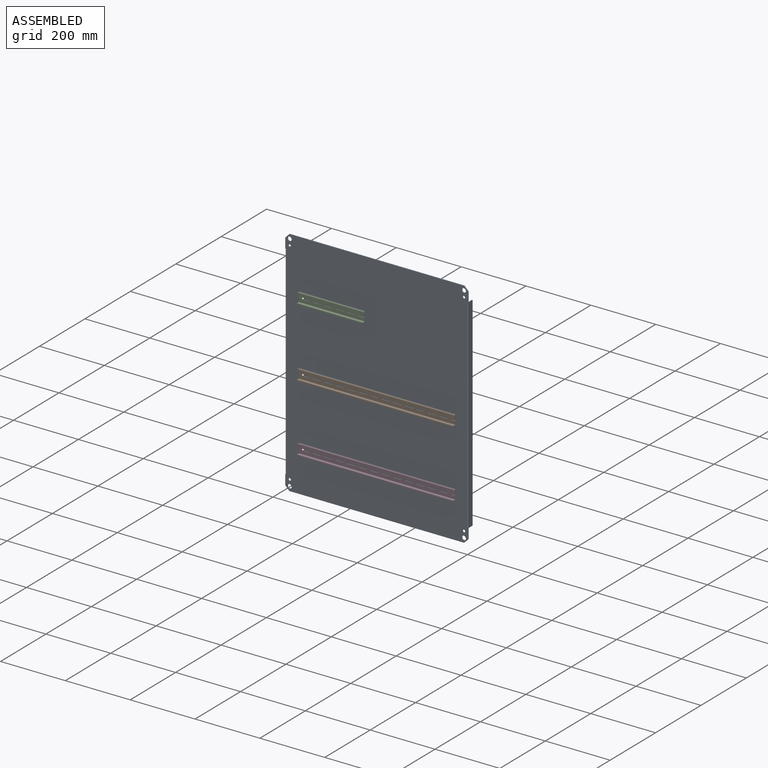
[diagram: assembled view]
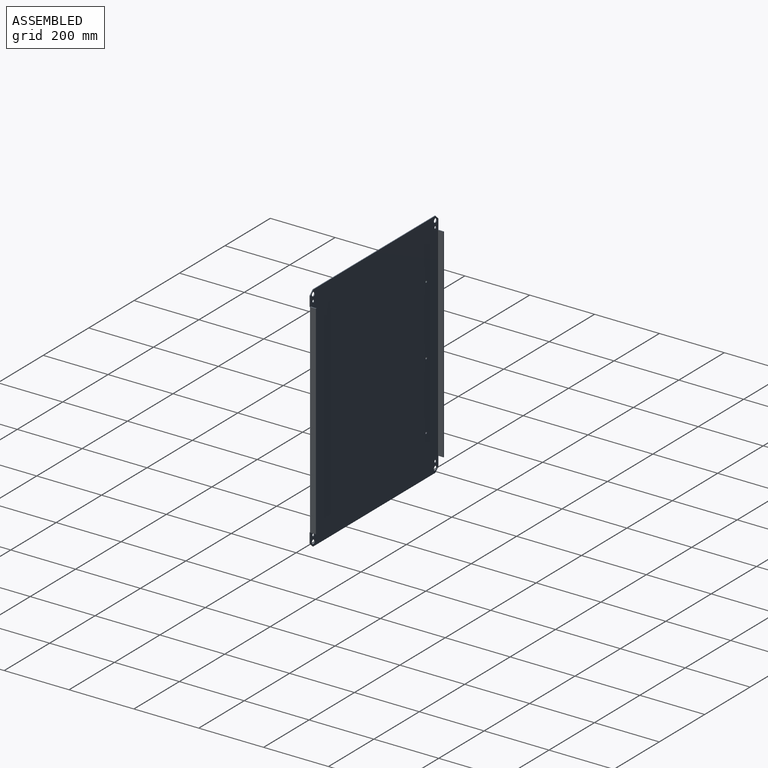
[diagram: assembled view, second angle]
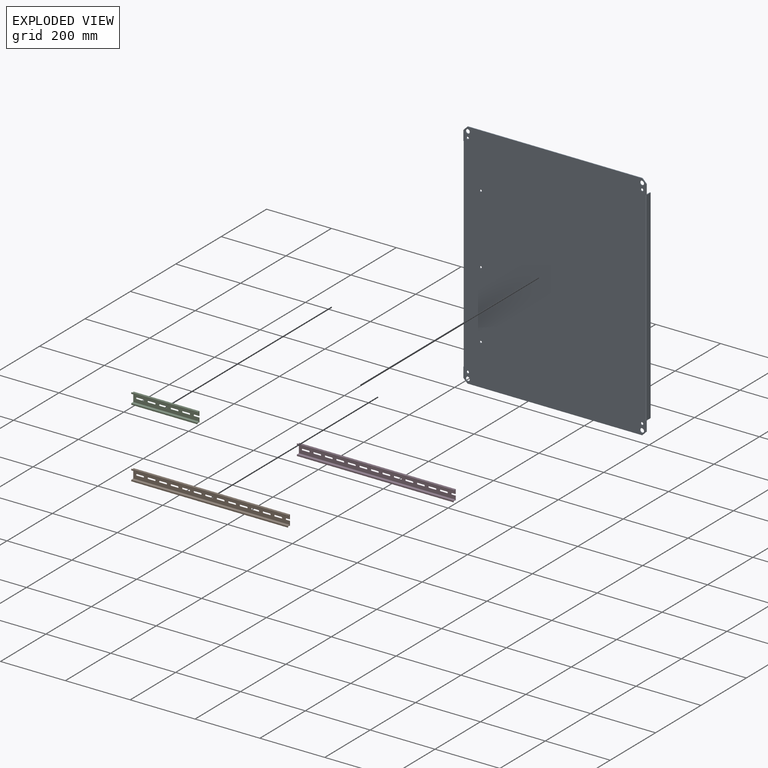
[diagram: exploded view]
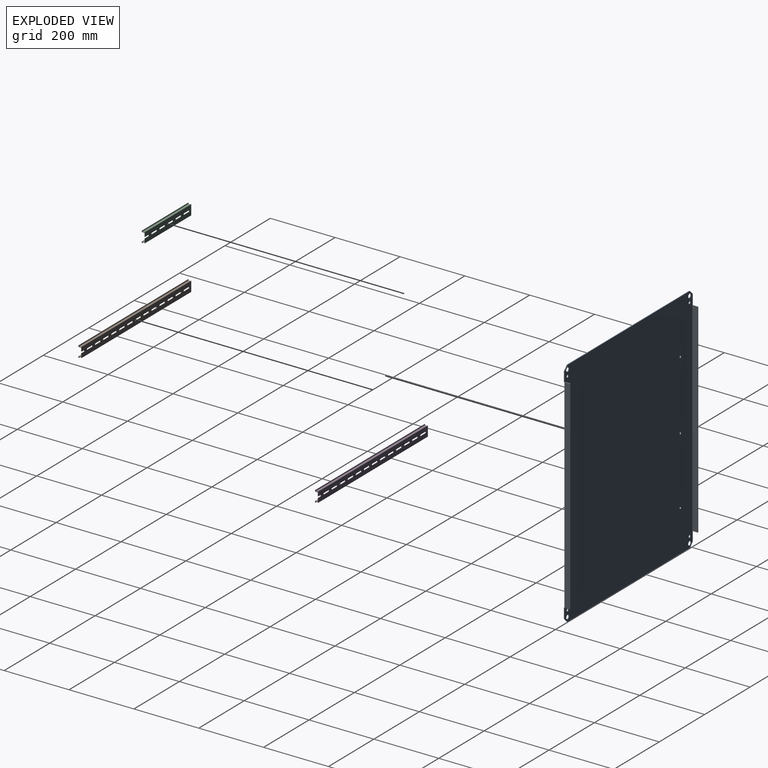
[diagram: exploded view, second angle]
ASSEMBLY  parts=4 mates=3
PART A: 45 faces, bbox 563.9x19.7x716.3 mm
  f0: plane 629.01x16.88mm, normal (1,0,0), area 10618.9mm2, adj f1,f2,f4,f6
  f1: plane 19.66x2.78mm, normal (0,0,-1), area 46.1mm2, adj f0,f2,f3,f5,f6,f9,f11,f12
  f2: plane 629.01x2.38mm, normal (0,1,0), area 1497.8mm2, adj f0,f1,f3,f4
  f3: plane 629.01x16.88mm, normal (-1,0,0), area 10618.9mm2, adj f1,f2,f4,f5
  f4: plane 19.66x2.78mm, normal (0,0,1), area 46.1mm2, adj f0,f2,f3,f5,f6,f8,f11,f12
  f5: cylinder r=0.4mm len=629.01mm, axis (0,0,1), area 391.5mm2, adj f1,f3,f4,f11
  f6: cylinder r=2.78mm len=629.01mm, axis (0,0,1), area 2744.3mm2, adj f0,f1,f4,f12
  f7: plane 2.78x2.38mm, normal (0,0,-1), area 6.6mm2, adj f8,f11,f12,f13
  f8: plane 2.38x0.01mm, normal (1,0,0), area 0mm2, adj f4,f7,f11,f12
  f9: plane 2.38x0.01mm, normal (1,0,0), area 0mm2, adj f1,f10,f11,f12
  f10: plane 2.78x2.38mm, normal (0,0,1), area 6.6mm2, adj f9,f11,f12,f39
  f11: plane 716.28x563.88mm, normal (0,1,0), area 399279.6mm2, adj f1,f4,f5,f7,f8,f9,f10,f13
  f12: plane 716.28x563.88mm, normal (0,-1,0), area 399279.6mm2, adj f1,f4,f6,f7,f8,f9,f10,f13
  f13: plane 30.93x2.38mm, normal (1,0,0), area 73.7mm2, adj f7,f11,f12,f40
  f14: plane 629.01x16.88mm, normal (-1,0,0), area 10618.9mm2, adj f15,f16,f18,f20
  f15: plane 19.66x2.78mm, normal (0,0,1), area 46.1mm2, adj f11,f12,f14,f16,f17,f19,f20,f23
  f16: plane 629.01x2.38mm, normal (0,1,0), area 1497.8mm2, adj f14,f15,f17,f18
  f17: plane 629.01x16.88mm, normal (1,0,0), area 10618.9mm2, adj f15,f16,f18,f19
  f18: plane 19.66x2.78mm, normal (0,0,-1), area 46.1mm2, adj f11,f12,f14,f16,f17,f19,f20,f22
  f19: cylinder r=0.4mm len=629.01mm, axis (0,0,-1), area 391.5mm2, adj f11,f15,f17,f18
  f20: cylinder r=2.78mm len=629.01mm, axis (0,0,-1), area 2744.3mm2, adj f12,f14,f15,f18
  f21: plane 2.78x2.38mm, normal (0,0,1), area 6.6mm2, adj f11,f12,f22,f25
  f22: plane 2.38x0.01mm, normal (-1,0,0), area 0mm2, adj f11,f12,f18,f21
  f23: plane 2.38x0.01mm, normal (-1,0,0), area 0mm2, adj f11,f12,f15,f24
  f24: plane 2.78x2.38mm, normal (0,0,-1), area 6.6mm2, adj f11,f12,f23,f26
  f25: plane 30.93x2.38mm, normal (-1,0,0), area 73.7mm2, adj f11,f12,f21,f36
  f26: plane 30.93x2.38mm, normal (-1,0,0), area 73.7mm2, adj f11,f12,f24,f35
  f27: cylinder r=6.35mm len=12.7mm, axis (0,1,0), area 95mm2, adj f11,f12
  f28: cylinder r=6.35mm len=12.7mm, axis (0,1,0), area 95mm2, adj f11,f12
  f29: cylinder r=6.35mm len=12.7mm, axis (0,1,0), area 95mm2, adj f11,f12
  f30: cylinder r=6.35mm len=12.7mm, axis (0,1,0), area 95mm2, adj f11,f12
  f31: cylinder r=3.97mm len=7.94mm, axis (0,1,0), area 59.4mm2, adj f11,f12
  f32: cylinder r=3.97mm len=7.94mm, axis (0,1,0), area 59.4mm2, adj f11,f12
  f33: cylinder r=3.97mm len=7.94mm, axis (0,1,0), area 59.4mm2, adj f11,f12
  f34: cylinder r=3.97mm len=7.94mm, axis (0,1,0), area 59.4mm2, adj f11,f12
  f35: plane 12.7x12.7mm, normal (-0.71,0,0.71), area 42.8mm2, adj f11,f12,f26,f41
  f36: plane 12.7x12.7mm, normal (-0.71,0,-0.71), area 42.8mm2, adj f11,f12,f25,f37
  f37: plane 538.48x2.38mm, normal (0,0,-1), area 1282.3mm2, adj f11,f12,f36,f38
  f38: plane 12.7x12.7mm, normal (0.71,0,-0.71), area 42.8mm2, adj f11,f12,f37,f39
  f39: plane 30.93x2.38mm, normal (1,0,0), area 73.7mm2, adj f10,f11,f12,f38
  f40: plane 12.7x12.7mm, normal (0.71,0,0.71), area 42.8mm2, adj f11,f12,f13,f41
  f41: plane 538.48x2.38mm, normal (0,0,1), area 1282.3mm2, adj f11,f12,f35,f40
  f42: cylinder r=3.17mm len=6.35mm, axis (0,-1,0), area 47.5mm2, adj f11,f12
  f43: cylinder r=3.17mm len=6.35mm, axis (0,-1,0), area 47.5mm2, adj f11,f12
  f44: cylinder r=3.17mm len=6.35mm, axis (0,-1,0), area 47.5mm2, adj f11,f12
PART B: 90 faces, bbox 482.6x10x35 mm
  f0: plane 482.6x3.96mm, normal (0,-1,0), area 1913mm2, adj f25,f26,f34,f89
  f1: plane 482.6x0.96mm, normal (0,0,-1), area 465.2mm2, adj f26,f27,f34,f89
  f2: plane 482.6x0.96mm, normal (0,0,-1), area 465.2mm2, adj f28,f29,f34,f89
  f3: plane 482.6x0.96mm, normal (0,0,1), area 465.2mm2, adj f30,f31,f34,f88
  f4: plane 482.6x0.96mm, normal (0,0,1), area 465.2mm2, adj f32,f33,f34,f88
  f5: plane 482.6x3.96mm, normal (0,-1,0), area 1913mm2, adj f24,f33,f34,f88
  f6: plane 482.6x7.96mm, normal (0,0,-1), area 3843.4mm2, adj f7,f24,f34,f88
  f7: cylinder r=0.27mm len=482.6mm, axis (-1,0,0), area 203.2mm2, adj f6,f8,f34,f88
  f8: plane 482.6x25.46mm, normal (0,-1,0), area 10765mm2, adj f7,f9,f22,f23,f34,f35,f36,f37
  f9: cylinder r=0.27mm len=482.6mm, axis (-1,0,0), area 203.2mm2, adj f8,f10,f34,f89
  f10: plane 482.6x7.96mm, normal (0,0,1), area 3843.4mm2, adj f9,f25,f34,f89
  f11: plane 482.6x2.46mm, normal (0,1,0), area 1189.1mm2, adj f12,f27,f34,f89
  f12: cylinder r=0.27mm len=482.6mm, axis (-1,0,0), area 203.2mm2, adj f11,f13,f34,f89
  f13: plane 482.6x6.46mm, normal (0,0,-1), area 3119.5mm2, adj f12,f14,f34,f89
  f14: cylinder r=0.27mm len=482.6mm, axis (-1,0,0), area 203.2mm2, adj f13,f15,f34,f89
  f15: plane 482.6x0.56mm, normal (0,-1,0), area 272.1mm2, adj f14,f28,f34,f89
  f16: plane 482.6x30.66mm, normal (0,1,0), area 13274.6mm2, adj f22,f23,f29,f30,f34,f35,f36,f37
  f17: plane 482.6x0.56mm, normal (0,-1,0), area 272.1mm2, adj f18,f31,f34,f88
  f18: cylinder r=0.27mm len=482.6mm, axis (-1,0,0), area 203.2mm2, adj f17,f19,f34,f88
  f19: plane 482.6x6.46mm, normal (0,0,1), area 3119.5mm2, adj f18,f20,f34,f88
  f20: cylinder r=0.27mm len=482.6mm, axis (-1,0,0), area 203.2mm2, adj f19,f21,f34,f88
  f21: plane 482.6x2.46mm, normal (0,1,0), area 1189.1mm2, adj f20,f32,f34,f88
  f22: plane 10.5x1.5mm, normal (0,0,1), area 15.8mm2, adj f8,f16,f87,f89
  f23: plane 10.5x1.5mm, normal (0,0,-1), area 15.8mm2, adj f8,f16,f87,f88
  f24: cylinder r=0.27mm len=482.6mm, axis (-1,0,0), area 203.2mm2, adj f5,f6,f34,f88
  f25: cylinder r=0.27mm len=482.6mm, axis (-1,0,0), area 203.2mm2, adj f0,f10,f34,f89
  f26: cylinder r=0.27mm len=482.6mm, axis (-1,0,0), area 203.2mm2, adj f0,f1,f34,f89
  f27: cylinder r=0.27mm len=482.6mm, axis (-1,0,0), area 203.2mm2, adj f1,f11,f34,f89
  f28: cylinder r=0.27mm len=482.6mm, axis (-1,0,0), area 203.2mm2, adj f2,f15,f34,f89
  f29: cylinder r=0.27mm len=482.6mm, axis (-1,0,0), area 203.2mm2, adj f2,f16,f34,f89
  f30: cylinder r=0.27mm len=482.6mm, axis (-1,0,0), area 203.2mm2, adj f3,f16,f34,f88
  f31: cylinder r=0.27mm len=482.6mm, axis (-1,0,0), area 203.2mm2, adj f3,f17,f34,f88
  f32: cylinder r=0.27mm len=482.6mm, axis (-1,0,0), area 203.2mm2, adj f4,f21,f34,f88
  f33: cylinder r=0.27mm len=482.6mm, axis (-1,0,0), area 203.2mm2, adj f4,f5,f34,f88
  f34: plane 35x10mm, normal (-1,0,0), area 81.2mm2, adj f0,f1,f2,f3,f4,f5,f6,f7
  f35: cylinder r=2.35mm len=4.7mm, axis (0,-1,0), area 11.1mm2, adj f8,f16,f36,f38
  f36: plane 20.3x1.5mm, normal (0,0,-1), area 30.4mm2, adj f8,f16,f35,f37
  f37: cylinder r=2.35mm len=4.7mm, axis (0,-1,0), area 11.1mm2, adj f8,f16,f36,f38
  f38: plane 20.3x1.5mm, normal (0,0,1), area 30.5mm2, adj f8,f16,f35,f37
  f39: cylinder r=2.35mm len=4.7mm, axis (0,-1,0), area 11.1mm2, adj f8,f16,f40,f42
  f40: plane 20.3x1.5mm, normal (0,0,-1), area 30.4mm2, adj f8,f16,f39,f41
  f41: cylinder r=2.35mm len=4.7mm, axis (0,-1,0), area 11.1mm2, adj f8,f16,f40,f42
  f42: plane 20.3x1.5mm, normal (0,0,1), area 30.5mm2, adj f8,f16,f39,f41
  f43: plane 20.3x1.5mm, normal (0,0,1), area 30.5mm2, adj f8,f16,f44,f46
  f44: cylinder r=2.35mm len=4.7mm, axis (0,-1,0), area 11.1mm2, adj f8,f16,f43,f45
  f45: plane 20.3x1.5mm, normal (0,0,-1), area 30.4mm2, adj f8,f16,f44,f46
  f46: cylinder r=2.35mm len=4.7mm, axis (0,-1,0), area 11.1mm2, adj f8,f16,f43,f45
  f47: plane 20.3x1.5mm, normal (0,0,1), area 30.5mm2, adj f8,f16,f48,f50
  f48: cylinder r=2.35mm len=4.7mm, axis (0,-1,0), area 11.1mm2, adj f8,f16,f47,f49
  f49: plane 20.3x1.5mm, normal (0,0,-1), area 30.4mm2, adj f8,f16,f48,f50
  f50: cylinder r=2.35mm len=4.7mm, axis (0,-1,0), area 11.1mm2, adj f8,f16,f47,f49
  f51: plane 20.3x1.5mm, normal (0,0,1), area 30.5mm2, adj f8,f16,f52,f54
  f52: cylinder r=2.35mm len=4.7mm, axis (0,-1,0), area 11.1mm2, adj f8,f16,f51,f53
  f53: plane 20.3x1.5mm, normal (0,0,-1), area 30.4mm2, adj f8,f16,f52,f54
  f54: cylinder r=2.35mm len=4.7mm, axis (0,-1,0), area 11.1mm2, adj f8,f16,f51,f53
  f55: plane 20.3x1.5mm, normal (0,0,1), area 30.5mm2, adj f8,f16,f56,f58
  f56: cylinder r=2.35mm len=4.7mm, axis (0,-1,0), area 11.1mm2, adj f8,f16,f55,f57
  f57: plane 20.3x1.5mm, normal (0,0,-1), area 30.4mm2, adj f8,f16,f56,f58
  f58: cylinder r=2.35mm len=4.7mm, axis (0,-1,0), area 11.1mm2, adj f8,f16,f55,f57
  f59: plane 20.3x1.5mm, normal (0,0,1), area 30.5mm2, adj f8,f16,f60,f62
  f60: cylinder r=2.35mm len=4.7mm, axis (0,-1,0), area 11.1mm2, adj f8,f16,f59,f61
  f61: plane 20.3x1.5mm, normal (0,0,-1), area 30.4mm2, adj f8,f16,f60,f62
  f62: cylinder r=2.35mm len=4.7mm, axis (0,-1,0), area 11.1mm2, adj f8,f16,f59,f61
  f63: plane 20.3x1.5mm, normal (0,0,1), area 30.5mm2, adj f8,f16,f64,f66
  f64: cylinder r=2.35mm len=4.7mm, axis (0,-1,0), area 11.1mm2, adj f8,f16,f63,f65
  f65: plane 20.3x1.5mm, normal (0,0,-1), area 30.4mm2, adj f8,f16,f64,f66
  f66: cylinder r=2.35mm len=4.7mm, axis (0,-1,0), area 11.1mm2, adj f8,f16,f63,f65
  f67: plane 20.3x1.5mm, normal (0,0,1), area 30.5mm2, adj f8,f16,f68,f70
  f68: cylinder r=2.35mm len=4.7mm, axis (0,-1,0), area 11.1mm2, adj f8,f16,f67,f69
  f69: plane 20.3x1.5mm, normal (0,0,-1), area 30.4mm2, adj f8,f16,f68,f70
  f70: cylinder r=2.35mm len=4.7mm, axis (0,-1,0), area 11.1mm2, adj f8,f16,f67,f69
  f71: plane 20.3x1.5mm, normal (0,0,1), area 30.5mm2, adj f8,f16,f72,f74
  f72: cylinder r=2.35mm len=4.7mm, axis (0,-1,0), area 11.1mm2, adj f8,f16,f71,f73
  f73: plane 20.3x1.5mm, normal (0,0,-1), area 30.4mm2, adj f8,f16,f72,f74
  f74: cylinder r=2.35mm len=4.7mm, axis (0,-1,0), area 11.1mm2, adj f8,f16,f71,f73
  f75: plane 20.3x1.5mm, normal (0,0,1), area 30.5mm2, adj f8,f16,f76,f78
  f76: cylinder r=2.35mm len=4.7mm, axis (0,-1,0), area 11.1mm2, adj f8,f16,f75,f77
  f77: plane 20.3x1.5mm, normal (0,0,-1), area 30.4mm2, adj f8,f16,f76,f78
  f78: cylinder r=2.35mm len=4.7mm, axis (0,-1,0), area 11.1mm2, adj f8,f16,f75,f77
  f79: plane 20.3x1.5mm, normal (0,0,1), area 30.5mm2, adj f8,f16,f80,f82
  f80: cylinder r=2.35mm len=4.7mm, axis (0,-1,0), area 11.1mm2, adj f8,f16,f79,f81
  f81: plane 20.3x1.5mm, normal (0,0,-1), area 30.4mm2, adj f8,f16,f80,f82
  f82: cylinder r=2.35mm len=4.7mm, axis (0,-1,0), area 11.1mm2, adj f8,f16,f79,f81
  f83: plane 20.3x1.5mm, normal (0,0,1), area 30.5mm2, adj f8,f16,f84,f86
  f84: cylinder r=2.35mm len=4.7mm, axis (0,-1,0), area 11.1mm2, adj f8,f16,f83,f85
  f85: plane 20.3x1.5mm, normal (0,0,-1), area 30.4mm2, adj f8,f16,f84,f86
  f86: cylinder r=2.35mm len=4.7mm, axis (0,-1,0), area 11.1mm2, adj f8,f16,f83,f85
  f87: cylinder r=2.35mm len=4.7mm, axis (0,-1,0), area 11.1mm2, adj f8,f16,f22,f23
  f88: plane 15.15x10mm, normal (1,0,0), area 37.1mm2, adj f3,f4,f5,f6,f7,f8,f16,f17
  f89: plane 15.15x10mm, normal (1,0,0), area 37.1mm2, adj f0,f1,f2,f8,f9,f10,f11,f12
PART C: 58 faces, bbox 203.5x10x35 mm
  f0: plane 203.46x3.96mm, normal (0,-1,0), area 806.5mm2, adj f25,f26,f34,f57
  f1: plane 203.46x0.96mm, normal (0,0,-1), area 196.1mm2, adj f26,f27,f34,f57
  f2: plane 203.46x0.96mm, normal (0,0,-1), area 196.1mm2, adj f28,f29,f34,f57
  f3: plane 203.46x0.96mm, normal (0,0,1), area 196.1mm2, adj f30,f31,f34,f56
  f4: plane 203.46x0.96mm, normal (0,0,1), area 196.1mm2, adj f32,f33,f34,f56
  f5: plane 203.46x3.96mm, normal (0,-1,0), area 806.5mm2, adj f24,f33,f34,f56
  f6: plane 203.46x7.96mm, normal (0,0,-1), area 1620.3mm2, adj f7,f24,f34,f56
  f7: cylinder r=0.27mm len=203.46mm, axis (-1,0,0), area 85.7mm2, adj f6,f8,f34,f56
  f8: plane 203.46x25.46mm, normal (0,-1,0), area 4536.1mm2, adj f7,f9,f22,f23,f34,f35,f36,f37
  f9: cylinder r=0.27mm len=203.46mm, axis (-1,0,0), area 85.7mm2, adj f8,f10,f34,f57
  f10: plane 203.46x7.96mm, normal (0,0,1), area 1620.3mm2, adj f9,f25,f34,f57
  f11: plane 203.46x2.46mm, normal (0,1,0), area 501.3mm2, adj f12,f27,f34,f57
  f12: cylinder r=0.27mm len=203.46mm, axis (-1,0,0), area 85.7mm2, adj f11,f13,f34,f57
  f13: plane 203.46x6.46mm, normal (0,0,-1), area 1315.1mm2, adj f12,f14,f34,f57
  f14: cylinder r=0.27mm len=203.46mm, axis (-1,0,0), area 85.7mm2, adj f13,f15,f34,f57
  f15: plane 203.46x0.56mm, normal (0,-1,0), area 114.7mm2, adj f14,f28,f34,f57
  f16: plane 203.46x30.66mm, normal (0,1,0), area 5594.1mm2, adj f22,f23,f29,f30,f34,f35,f36,f37
  f17: plane 203.46x0.56mm, normal (0,-1,0), area 114.7mm2, adj f18,f31,f34,f56
  f18: cylinder r=0.27mm len=203.46mm, axis (-1,0,0), area 85.7mm2, adj f17,f19,f34,f56
  f19: plane 203.46x6.46mm, normal (0,0,1), area 1315.1mm2, adj f18,f20,f34,f56
  f20: cylinder r=0.27mm len=203.46mm, axis (-1,0,0), area 85.7mm2, adj f19,f21,f34,f56
  f21: plane 203.46x2.46mm, normal (0,1,0), area 501.3mm2, adj f20,f32,f34,f56
  f22: plane 15.36x1.5mm, normal (0,0,1), area 23mm2, adj f8,f16,f55,f57
  f23: plane 15.36x1.5mm, normal (0,0,-1), area 23mm2, adj f8,f16,f55,f56
  f24: cylinder r=0.27mm len=203.46mm, axis (-1,0,0), area 85.7mm2, adj f5,f6,f34,f56
  f25: cylinder r=0.27mm len=203.46mm, axis (-1,0,0), area 85.7mm2, adj f0,f10,f34,f57
  f26: cylinder r=0.27mm len=203.46mm, axis (-1,0,0), area 85.7mm2, adj f0,f1,f34,f57
  f27: cylinder r=0.27mm len=203.46mm, axis (-1,0,0), area 85.7mm2, adj f1,f11,f34,f57
  f28: cylinder r=0.27mm len=203.46mm, axis (-1,0,0), area 85.7mm2, adj f2,f15,f34,f57
  f29: cylinder r=0.27mm len=203.46mm, axis (-1,0,0), area 85.7mm2, adj f2,f16,f34,f57
  f30: cylinder r=0.27mm len=203.46mm, axis (-1,0,0), area 85.7mm2, adj f3,f16,f34,f56
  f31: cylinder r=0.27mm len=203.46mm, axis (-1,0,0), area 85.7mm2, adj f3,f17,f34,f56
  f32: cylinder r=0.27mm len=203.46mm, axis (-1,0,0), area 85.7mm2, adj f4,f21,f34,f56
  f33: cylinder r=0.27mm len=203.46mm, axis (-1,0,0), area 85.7mm2, adj f4,f5,f34,f56
  f34: plane 35x10mm, normal (-1,0,0), area 81.2mm2, adj f0,f1,f2,f3,f4,f5,f6,f7
  f35: cylinder r=2.35mm len=4.7mm, axis (0,-1,0), area 11.1mm2, adj f8,f16,f36,f38
  f36: plane 20.3x1.5mm, normal (0,0,-1), area 30.4mm2, adj f8,f16,f35,f37
  f37: cylinder r=2.35mm len=4.7mm, axis (0,-1,0), area 11.1mm2, adj f8,f16,f36,f38
  f38: plane 20.3x1.5mm, normal (0,0,1), area 30.5mm2, adj f8,f16,f35,f37
  f39: cylinder r=2.35mm len=4.7mm, axis (0,-1,0), area 11.1mm2, adj f8,f16,f40,f42
  f40: plane 20.3x1.5mm, normal (0,0,-1), area 30.4mm2, adj f8,f16,f39,f41
  f41: cylinder r=2.35mm len=4.7mm, axis (0,-1,0), area 11.1mm2, adj f8,f16,f40,f42
  f42: plane 20.3x1.5mm, normal (0,0,1), area 30.5mm2, adj f8,f16,f39,f41
  f43: plane 20.3x1.5mm, normal (0,0,1), area 30.5mm2, adj f8,f16,f44,f46
  f44: cylinder r=2.35mm len=4.7mm, axis (0,-1,0), area 11.1mm2, adj f8,f16,f43,f45
  f45: plane 20.3x1.5mm, normal (0,0,-1), area 30.4mm2, adj f8,f16,f44,f46
  f46: cylinder r=2.35mm len=4.7mm, axis (0,-1,0), area 11.1mm2, adj f8,f16,f43,f45
  f47: plane 20.3x1.5mm, normal (0,0,1), area 30.5mm2, adj f8,f16,f48,f50
  f48: cylinder r=2.35mm len=4.7mm, axis (0,-1,0), area 11.1mm2, adj f8,f16,f47,f49
  f49: plane 20.3x1.5mm, normal (0,0,-1), area 30.4mm2, adj f8,f16,f48,f50
  f50: cylinder r=2.35mm len=4.7mm, axis (0,-1,0), area 11.1mm2, adj f8,f16,f47,f49
  f51: plane 20.3x1.5mm, normal (0,0,1), area 30.5mm2, adj f8,f16,f52,f54
  f52: cylinder r=2.35mm len=4.7mm, axis (0,-1,0), area 11.1mm2, adj f8,f16,f51,f53
  f53: plane 20.3x1.5mm, normal (0,0,-1), area 30.4mm2, adj f8,f16,f52,f54
  f54: cylinder r=2.35mm len=4.7mm, axis (0,-1,0), area 11.1mm2, adj f8,f16,f51,f53
  f55: cylinder r=2.35mm len=4.7mm, axis (0,-1,0), area 11.1mm2, adj f8,f16,f22,f23
  f56: plane 15.15x10mm, normal (1,0,0), area 37.1mm2, adj f3,f4,f5,f6,f7,f8,f16,f17
  f57: plane 15.15x10mm, normal (1,0,0), area 37.1mm2, adj f0,f1,f2,f8,f9,f10,f11,f12
PART D: same geometry as B
PLACE A t=(-582.11,431.15,-51.73)mm
PLACE B t=(-39.13,423.77,283.55)mm
PLACE C t=(-39.13,423.77,496.86)mm
PLACE D t=(-39.13,423.77,75.27)mm
MATE fastened C.f35 <-> A.f43  axis (0,1,0) through (-528.53,428.77,496.86)mm
MATE fastened D.f35 <-> A.f42  axis (0,1,0) through (-528.53,428.77,75.27)mm
MATE fastened B.f35 <-> A.f44  axis (0,1,0) through (-528.53,428.77,283.55)mm
